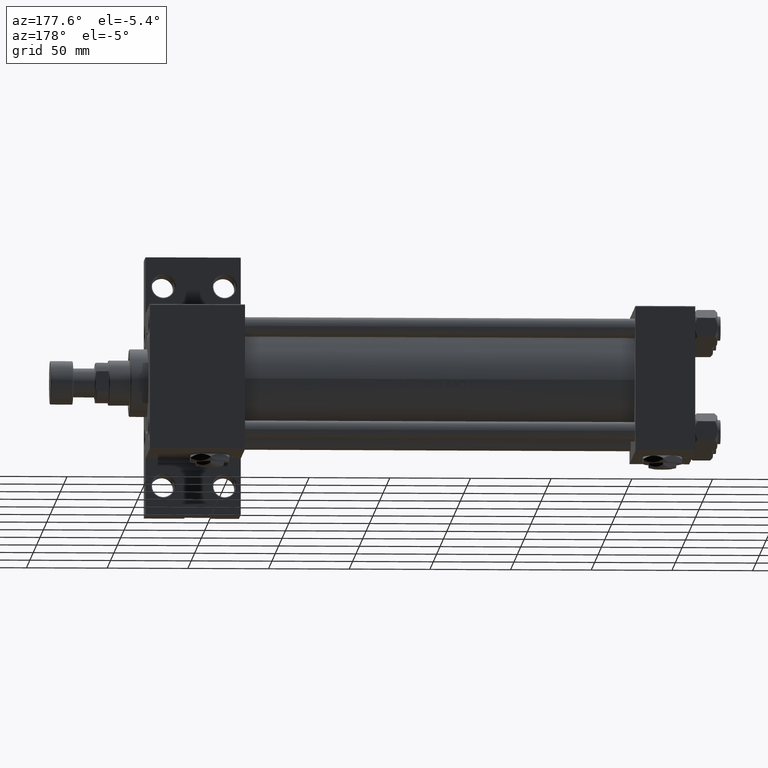
[diagram: clean part render]
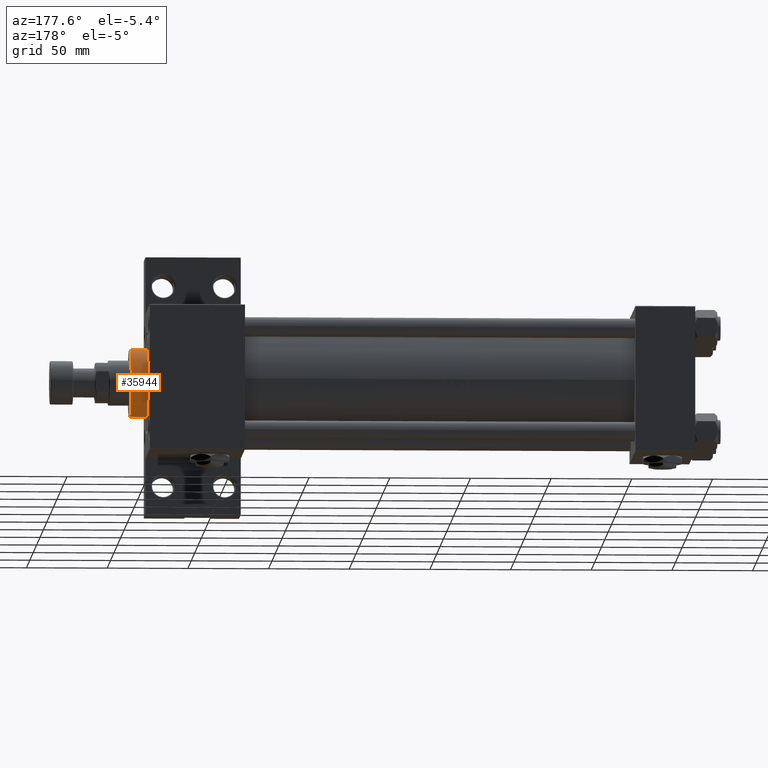
[diagram: same view with one face highlighted and labeled with its STEP entity id]
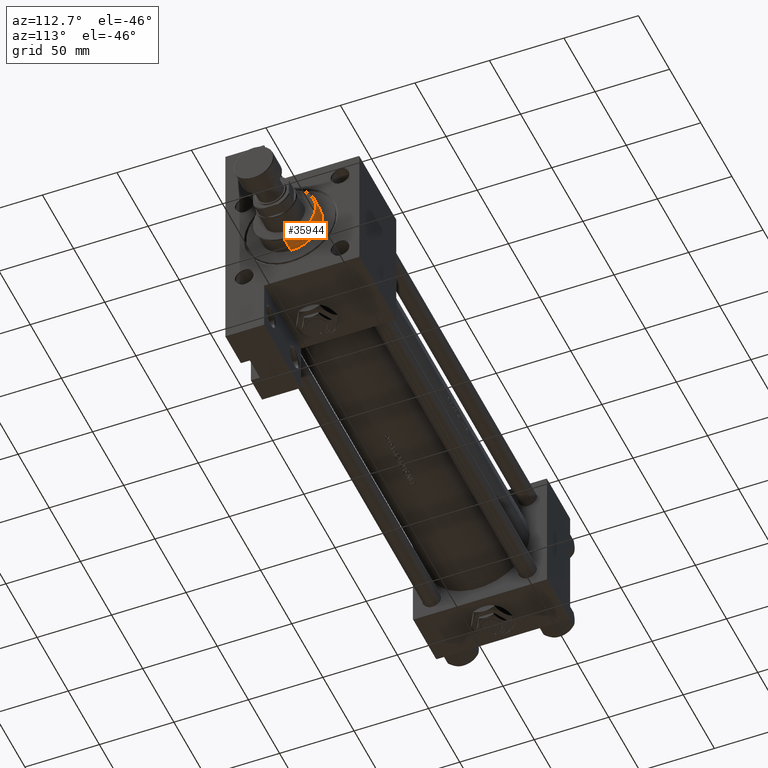
[diagram: same view with one face highlighted and labeled with its STEP entity id]
A machine part, auxiliary view. The second image highlights one B-rep face of the part: STEP entity #35944.
A second angle (auxiliary view) of the same face is appended — the face is thin or edge-on in the first view.
In plain terms, the highlighted cylindrical surface (edge-blend (fillet) strip) has radius 21 mm, axis along (-1, 0, 0).
Its self-contained STEP definition (entity closure, byte-faithful):
#2084 = DIRECTION ( 'NONE',  ( 0.000000000000000000, 0.000000000000000000, 1.000000000000000000 ) ) ;
#4404 = EDGE_CURVE ( 'NONE', #32690, #32145, #6663, .T. ) ;
#4813 = CIRCLE ( 'NONE', #11277, 21.00000000000000000 ) ;
#5349 = ORIENTED_EDGE ( 'NONE', *, *, #27318, .F. ) ;
#6663 = CIRCLE ( 'NONE', #15716, 21.00000000000000000 ) ;
#6973 = CARTESIAN_POINT ( 'NONE',  ( 21.00000000000000000, 2.571758278209441661E-15, 28.69999999999999929 ) ) ;
#6974 = DIRECTION ( 'NONE',  ( -0.000000000000000000, -0.000000000000000000, -1.000000000000000000 ) ) ;
#7101 = LINE ( 'NONE', #50002, #29251 ) ;
#7314 = ORIENTED_EDGE ( 'NONE', *, *, #20754, .T. ) ;
#7918 = VECTOR ( 'NONE', #35813, 1000.000000000000000 ) ;
#8126 = LINE ( 'NONE', #39624, #7918 ) ;
#8373 = ORIENTED_EDGE ( 'NONE', *, *, #23945, .T. ) ;
#11277 = AXIS2_PLACEMENT_3D ( 'NONE', #14070, #29813, #36931 ) ;
#11569 = AXIS2_PLACEMENT_3D ( 'NONE', #14114, #6974, #21727 ) ;
#11755 = EDGE_LOOP ( 'NONE', ( #5349, #8373, #7314, #12462 ) ) ;
#12462 = ORIENTED_EDGE ( 'NONE', *, *, #4404, .T. ) ;
#12692 = VERTEX_POINT ( 'NONE', #25027 ) ;
#13854 = FACE_OUTER_BOUND ( 'NONE', #11755, .T. ) ;
#14070 = CARTESIAN_POINT ( 'NONE',  ( 0.000000000000000000, 0.000000000000000000, 39.19999999999999574 ) ) ;
#14114 = CARTESIAN_POINT ( 'NONE',  ( 0.000000000000000000, 0.000000000000000000, 39.69999999999999574 ) ) ;
#14481 = CARTESIAN_POINT ( 'NONE',  ( -21.00000000000000000, 0.000000000000000000, 28.69999999999999929 ) ) ;
#15716 = AXIS2_PLACEMENT_3D ( 'NONE', #48282, #2084, #32818 ) ;
#20754 = EDGE_CURVE ( 'NONE', #12692, #32690, #8126, .T. ) ;
#21727 = DIRECTION ( 'NONE',  ( -1.000000000000000000, 0.000000000000000000, 0.000000000000000000 ) ) ;
#23945 = EDGE_CURVE ( 'NONE', #39512, #12692, #4813, .T. ) ;
#25027 = CARTESIAN_POINT ( 'NONE',  ( -21.00000000000000000, 0.000000000000000000, 39.19999999999999574 ) ) ;
#27318 = EDGE_CURVE ( 'NONE', #39512, #32145, #7101, .T. ) ;
#29251 = VECTOR ( 'NONE', #37599, 1000.000000000000000 ) ;
#29813 = DIRECTION ( 'NONE',  ( 0.000000000000000000, 0.000000000000000000, -1.000000000000000000 ) ) ;
#32145 = VERTEX_POINT ( 'NONE', #6973 ) ;
#32690 = VERTEX_POINT ( 'NONE', #14481 ) ;
#32818 = DIRECTION ( 'NONE',  ( 1.000000000000000000, 0.000000000000000000, 0.000000000000000000 ) ) ;
#35813 = DIRECTION ( 'NONE',  ( -0.000000000000000000, -0.000000000000000000, -1.000000000000000000 ) ) ;
#35944 = ADVANCED_FACE ( 'NONE', ( #13854 ), #48873, .T. ) ;
#36931 = DIRECTION ( 'NONE',  ( 1.000000000000000000, 0.000000000000000000, 0.000000000000000000 ) ) ;
#37599 = DIRECTION ( 'NONE',  ( -0.000000000000000000, -0.000000000000000000, -1.000000000000000000 ) ) ;
#39512 = VERTEX_POINT ( 'NONE', #46284 ) ;
#39624 = CARTESIAN_POINT ( 'NONE',  ( -21.00000000000000000, 0.000000000000000000, 39.69999999999999574 ) ) ;
#46284 = CARTESIAN_POINT ( 'NONE',  ( 21.00000000000000000, 2.571758278209441661E-15, 39.19999999999999574 ) ) ;
#48282 = CARTESIAN_POINT ( 'NONE',  ( 0.000000000000000000, 0.000000000000000000, 28.69999999999999929 ) ) ;
#48873 = CYLINDRICAL_SURFACE ( 'NONE', #11569, 21.00000000000000000 ) ;
#50002 = CARTESIAN_POINT ( 'NONE',  ( 21.00000000000000000, 2.571758278209441661E-15, 39.69999999999999574 ) ) ;